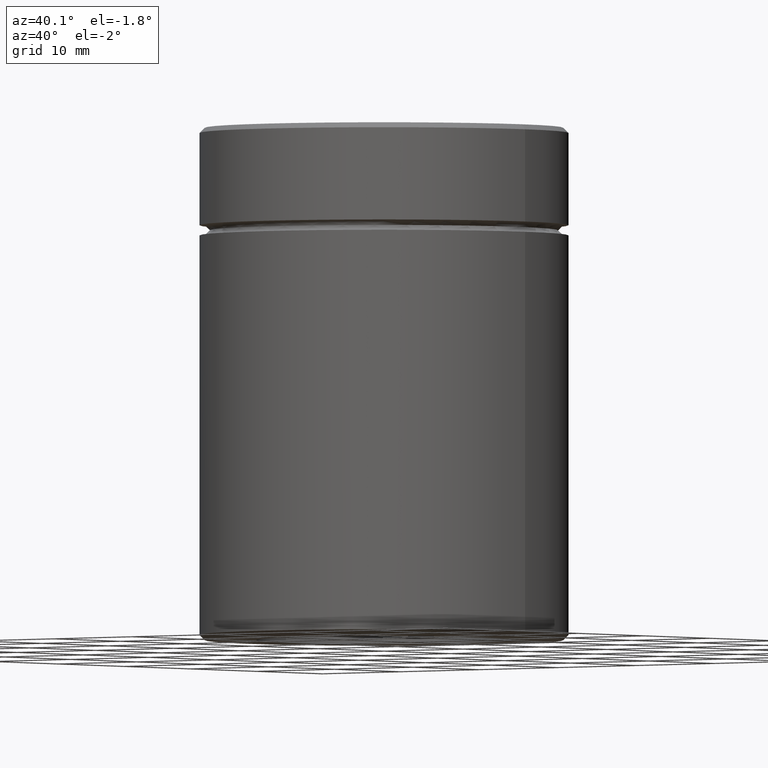
[diagram: clean part render]
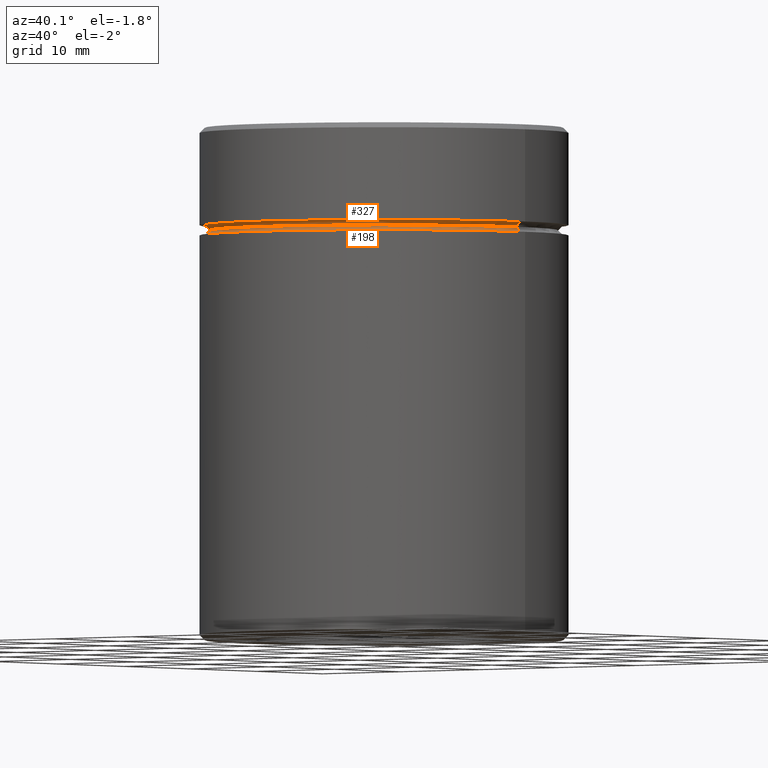
[diagram: same view with one multi-face feature highlighted, each face labeled with its STEP entity id]
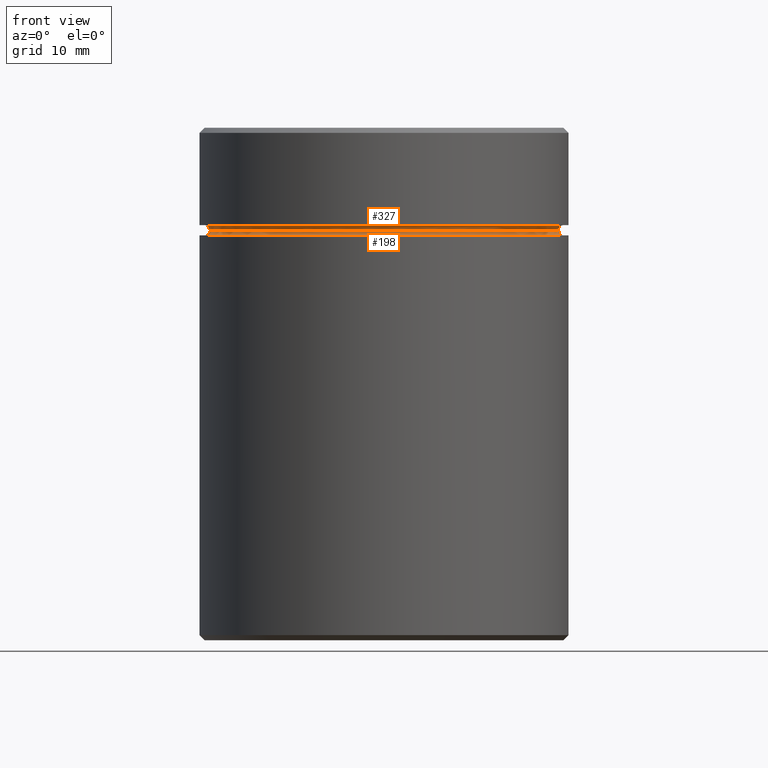
[diagram: same view with one multi-face feature highlighted, each face labeled with its STEP entity id]
A machine part, auxiliary view. The highlighted faces form ONE feature: a constant-radius fillet chain: 2 tangent blend faces with common blend radius 0.5 mm. The faces share edges in the B-rep.
A second angle (front view) of the same feature is appended — it is thin or edge-on in the first view.
Their STEP definitions:
[1] entity #198 (Torus):
#11 = CARTESIAN_POINT ( 'NONE',  ( 0.000000000000000000, 0.000000000000000000, -10.00000000000000178 ) ) ;
#22 = CARTESIAN_POINT ( 'NONE',  ( 0.000000000000000000, 0.000000000000000000, -10.50000000000000178 ) ) ;
#25 = CARTESIAN_POINT ( 'NONE',  ( 17.49999999999999645, 0.000000000000000000, -10.50000000000000178 ) ) ;
#54 = CARTESIAN_POINT ( 'NONE',  ( -17.49999999999999645, 2.143131898507867854E-15, -10.50000000000000178 ) ) ;
#61 = DIRECTION ( 'NONE',  ( 1.000000000000000000, 0.000000000000000000, 0.000000000000000000 ) ) ;
#62 = VERTEX_POINT ( 'NONE', #54 ) ;
#76 = CIRCLE ( 'NONE', #448, 0.5000000000000004441 ) ;
#141 = VERTEX_POINT ( 'NONE', #414 ) ;
#167 = ORIENTED_EDGE ( 'NONE', *, *, #176, .F. ) ;
#176 = EDGE_CURVE ( 'NONE', #553, #519, #549, .T. ) ;
#178 = TOROIDAL_SURFACE ( 'NONE', #352, 17.49999999999999645, 0.5000000000000000000 ) ;
#194 = FACE_OUTER_BOUND ( 'NONE', #227, .T. ) ;
#198 = ADVANCED_FACE ( 'NONE', ( #194 ), #178, .F. ) ;
#207 = CIRCLE ( 'NONE', #476, 16.99999999999999645 ) ;
#227 = EDGE_LOOP ( 'NONE', ( #442, #463, #540, #167 ) ) ;
#246 = DIRECTION ( 'NONE',  ( 1.224646799147353207E-16, 1.000000000000000000, 0.000000000000000000 ) ) ;
#258 = CIRCLE ( 'NONE', #520, 17.49999999999999645 ) ;
#302 = DIRECTION ( 'NONE',  ( 0.000000000000000000, 0.000000000000000000, -1.000000000000000000 ) ) ;
#305 = EDGE_CURVE ( 'NONE', #141, #62, #76, .T. ) ;
#313 = EDGE_CURVE ( 'NONE', #519, #62, #258, .T. ) ;
#318 = DIRECTION ( 'NONE',  ( -0.000000000000000000, -0.000000000000000000, 1.000000000000000000 ) ) ;
#341 = DIRECTION ( 'NONE',  ( 0.000000000000000000, -1.000000000000000000, 0.000000000000000000 ) ) ;
#352 = AXIS2_PLACEMENT_3D ( 'NONE', #11, #318, #499 ) ;
#371 = CARTESIAN_POINT ( 'NONE',  ( 17.49999999999999645, 0.000000000000000000, -10.00000000000000178 ) ) ;
#374 = DIRECTION ( 'NONE',  ( 1.000000000000000000, 0.000000000000000000, 0.000000000000000000 ) ) ;
#388 = CARTESIAN_POINT ( 'NONE',  ( 0.000000000000000000, 0.000000000000000000, -10.00000000000000178 ) ) ;
#413 = DIRECTION ( 'NONE',  ( -1.000000000000000000, 1.224646799147349509E-16, 0.000000000000000000 ) ) ;
#414 = CARTESIAN_POINT ( 'NONE',  ( -16.99999999999999645, 2.112515728529184067E-15, -10.00000000000000178 ) ) ;
#420 = AXIS2_PLACEMENT_3D ( 'NONE', #371, #341, #543 ) ;
#422 = CARTESIAN_POINT ( 'NONE',  ( -17.49999999999999645, 2.143131898507867854E-15, -10.00000000000000178 ) ) ;
#429 = DIRECTION ( 'NONE',  ( -0.000000000000000000, -0.000000000000000000, 1.000000000000000000 ) ) ;
#442 = ORIENTED_EDGE ( 'NONE', *, *, #493, .F. ) ;
#448 = AXIS2_PLACEMENT_3D ( 'NONE', #422, #246, #413 ) ;
#463 = ORIENTED_EDGE ( 'NONE', *, *, #305, .T. ) ;
#476 = AXIS2_PLACEMENT_3D ( 'NONE', #388, #429, #61 ) ;
#493 = EDGE_CURVE ( 'NONE', #141, #553, #207, .T. ) ;
#499 = DIRECTION ( 'NONE',  ( 1.000000000000000000, 0.000000000000000000, 0.000000000000000000 ) ) ;
#519 = VERTEX_POINT ( 'NONE', #25 ) ;
#520 = AXIS2_PLACEMENT_3D ( 'NONE', #22, #302, #374 ) ;
#540 = ORIENTED_EDGE ( 'NONE', *, *, #313, .F. ) ;
#543 = DIRECTION ( 'NONE',  ( 0.000000000000000000, 0.000000000000000000, -1.000000000000000000 ) ) ;
#549 = CIRCLE ( 'NONE', #420, 0.5000000000000004441 ) ;
#553 = VERTEX_POINT ( 'NONE', #561 ) ;
#561 = CARTESIAN_POINT ( 'NONE',  ( 16.99999999999999645, 0.000000000000000000, -10.00000000000000178 ) ) ;
[2] entity #327 (Torus):
#45 = CARTESIAN_POINT ( 'NONE',  ( 17.49999999999999645, 2.143131898507867854E-15, -9.499999999999998224 ) ) ;
#59 = DIRECTION ( 'NONE',  ( -1.000000000000000000, 0.000000000000000000, 0.000000000000000000 ) ) ;
#61 = DIRECTION ( 'NONE',  ( 1.000000000000000000, 0.000000000000000000, 0.000000000000000000 ) ) ;
#89 = VERTEX_POINT ( 'NONE', #127 ) ;
#92 = ORIENTED_EDGE ( 'NONE', *, *, #493, .T. ) ;
#95 = AXIS2_PLACEMENT_3D ( 'NONE', #468, #105, #285 ) ;
#101 = AXIS2_PLACEMENT_3D ( 'NONE', #122, #382, #469 ) ;
#105 = DIRECTION ( 'NONE',  ( -1.224646799147353207E-16, 1.000000000000000000, 0.000000000000000000 ) ) ;
#122 = CARTESIAN_POINT ( 'NONE',  ( -17.49999999999999645, 0.000000000000000000, -9.999999999999998224 ) ) ;
#123 = FACE_OUTER_BOUND ( 'NONE', #369, .T. ) ;
#127 = CARTESIAN_POINT ( 'NONE',  ( -17.49999999999999645, 0.000000000000000000, -9.499999999999998224 ) ) ;
#129 = CIRCLE ( 'NONE', #272, 17.49999999999999645 ) ;
#136 = EDGE_CURVE ( 'NONE', #553, #445, #231, .T. ) ;
#141 = VERTEX_POINT ( 'NONE', #414 ) ;
#197 = AXIS2_PLACEMENT_3D ( 'NONE', #348, #423, #296 ) ;
#207 = CIRCLE ( 'NONE', #476, 16.99999999999999645 ) ;
#216 = EDGE_CURVE ( 'NONE', #89, #445, #129, .T. ) ;
#231 = CIRCLE ( 'NONE', #95, 0.5000000000000004441 ) ;
#272 = AXIS2_PLACEMENT_3D ( 'NONE', #407, #451, #59 ) ;
#283 = EDGE_CURVE ( 'NONE', #141, #89, #376, .T. ) ;
#284 = ORIENTED_EDGE ( 'NONE', *, *, #136, .T. ) ;
#285 = DIRECTION ( 'NONE',  ( -1.000000000000000000, -1.224646799147349509E-16, 0.000000000000000000 ) ) ;
#296 = DIRECTION ( 'NONE',  ( -1.000000000000000000, 0.000000000000000000, 0.000000000000000000 ) ) ;
#327 = ADVANCED_FACE ( 'NONE', ( #123 ), #408, .F. ) ;
#348 = CARTESIAN_POINT ( 'NONE',  ( 0.000000000000000000, 0.000000000000000000, -9.999999999999998224 ) ) ;
#369 = EDGE_LOOP ( 'NONE', ( #92, #284, #455, #410 ) ) ;
#376 = CIRCLE ( 'NONE', #101, 0.5000000000000004441 ) ;
#382 = DIRECTION ( 'NONE',  ( -0.000000000000000000, -1.000000000000000000, -0.000000000000000000 ) ) ;
#388 = CARTESIAN_POINT ( 'NONE',  ( 0.000000000000000000, 0.000000000000000000, -10.00000000000000178 ) ) ;
#407 = CARTESIAN_POINT ( 'NONE',  ( 0.000000000000000000, 0.000000000000000000, -9.499999999999998224 ) ) ;
#408 = TOROIDAL_SURFACE ( 'NONE', #197, 17.49999999999999645, 0.5000000000000000000 ) ;
#410 = ORIENTED_EDGE ( 'NONE', *, *, #283, .F. ) ;
#414 = CARTESIAN_POINT ( 'NONE',  ( -16.99999999999999645, 2.112515728529184067E-15, -10.00000000000000178 ) ) ;
#423 = DIRECTION ( 'NONE',  ( 0.000000000000000000, 0.000000000000000000, -1.000000000000000000 ) ) ;
#429 = DIRECTION ( 'NONE',  ( -0.000000000000000000, -0.000000000000000000, 1.000000000000000000 ) ) ;
#445 = VERTEX_POINT ( 'NONE', #45 ) ;
#451 = DIRECTION ( 'NONE',  ( -0.000000000000000000, -0.000000000000000000, 1.000000000000000000 ) ) ;
#455 = ORIENTED_EDGE ( 'NONE', *, *, #216, .F. ) ;
#468 = CARTESIAN_POINT ( 'NONE',  ( 17.49999999999999645, 2.143131898507867854E-15, -9.999999999999998224 ) ) ;
#469 = DIRECTION ( 'NONE',  ( 0.000000000000000000, 0.000000000000000000, -1.000000000000000000 ) ) ;
#476 = AXIS2_PLACEMENT_3D ( 'NONE', #388, #429, #61 ) ;
#493 = EDGE_CURVE ( 'NONE', #141, #553, #207, .T. ) ;
#553 = VERTEX_POINT ( 'NONE', #561 ) ;
#561 = CARTESIAN_POINT ( 'NONE',  ( 16.99999999999999645, 0.000000000000000000, -10.00000000000000178 ) ) ;